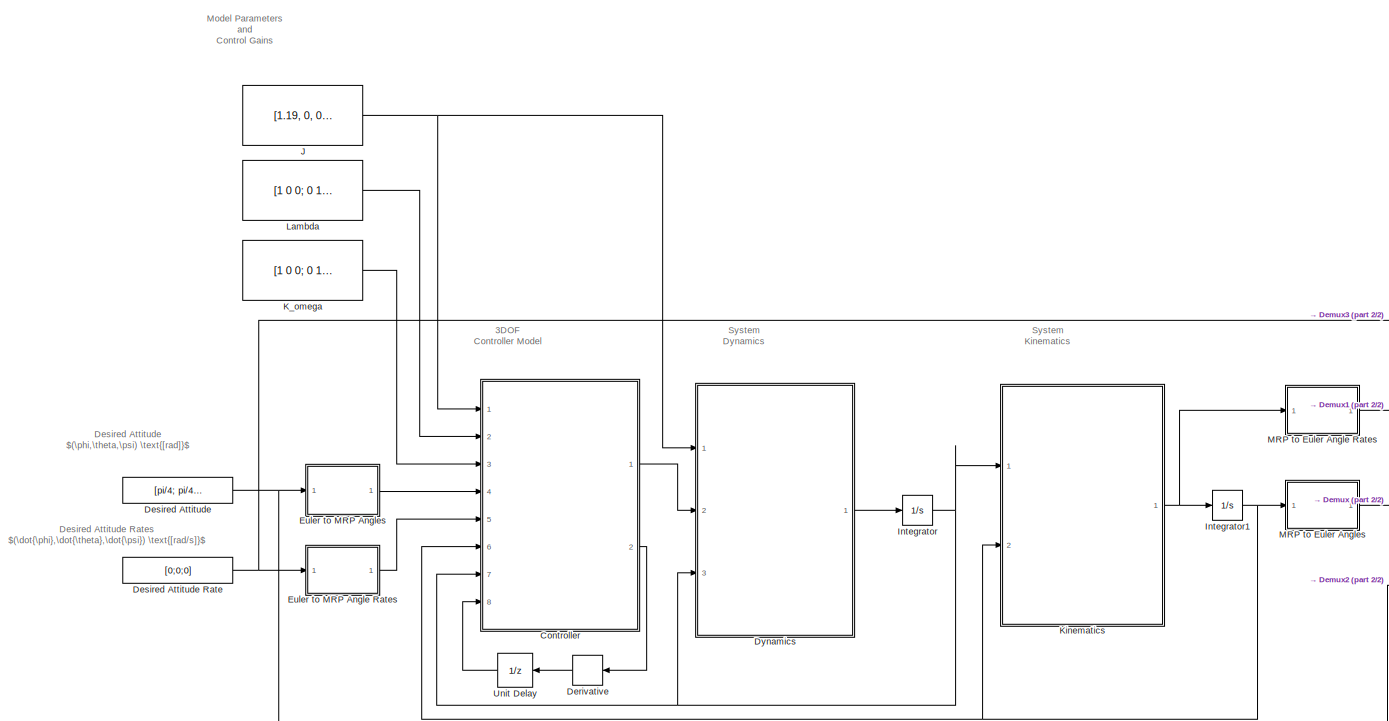
[diagram: root canvas - part 1/2, most of the canvas]
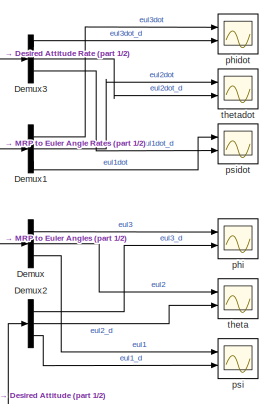
[diagram: root canvas - part 2/2, middle right region]
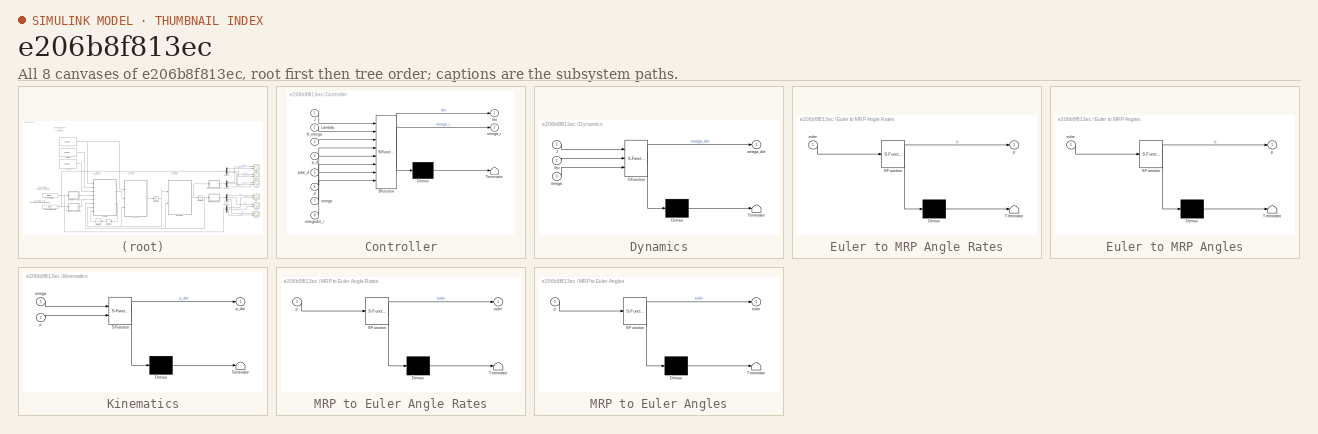
[diagram: thumbnail index - all 8 canvases of the model, root first then tree order]
MODEL slx_e206b8f813ec
KIND model
CONFIG AbsTol = auto
CONFIG EnableMultiTasking = off
CONFIG FixedStep = 1/100
CONFIG MaxStep = auto
CONFIG MinStep = auto
CONFIG RelTol = 1e-3
CONFIG SampleTimeConstraint = Unconstrained
CONFIG Solver = FixedStepAuto
CONFIG SolverName = FixedStepAuto
CONFIG StartTime = 0.0
CONFIG StopTime = 20
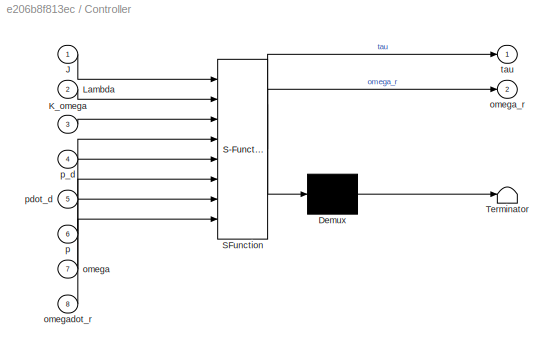
BLOCK [SubSystem] Controller
  ErrorFcn = Stateflow.Translate.translate
  PermitHierarchicalResolution = ExplicitOnly
  Ports = [8, 2]
  RequestExecContextInheritance = off
  SFBlockType = MATLAB Function
  TreatAsAtomicUnit = on
BLOCK [Demux] Controller/ Demux 
  Outputs = 1
  Ports = [1, 1]
BLOCK [S-Function] Controller/ SFunction 
  EnableBusSupport = on
  FunctionName = sf_sfun
  PortCounts = [8 3]
  Ports = [8, 3]
  SFcnIsStateOwnerBlock = off
  SFunctionDeploymentMode = off
  Tag = Stateflow S-Function controller 2
BLOCK [Terminator] Controller/ Terminator 
BLOCK [Inport] Controller/J
  IconDisplay = Port number
BLOCK [Inport] Controller/K_omega
  IconDisplay = Port number
  Port = 3
BLOCK [Inport] Controller/Lambda
  IconDisplay = Port number
  Port = 2
BLOCK [Inport] Controller/omega
  IconDisplay = Port number
  Port = 7
BLOCK [Outport] Controller/omega_r
  IconDisplay = Port number
  Port = 2
BLOCK [Inport] Controller/omegadot_r
  IconDisplay = Port number
  Port = 8
BLOCK [Inport] Controller/p
  IconDisplay = Port number
  Port = 6
BLOCK [Inport] Controller/p_d
  IconDisplay = Port number
  Port = 4
BLOCK [Inport] Controller/pdot_d
  IconDisplay = Port number
  Port = 5
BLOCK [Outport] Controller/tau
  IconDisplay = Port number
BLOCK [Demux] Demux
  DisplayOption = bar
  Outputs = 3
  Ports = [1, 3]
BLOCK [Demux] Demux1
  DisplayOption = bar
  Outputs = 3
  Ports = [1, 3]
BLOCK [Demux] Demux2
  DisplayOption = bar
  Outputs = 3
  Ports = [1, 3]
BLOCK [Demux] Demux3
  DisplayOption = bar
  Outputs = 3
  Ports = [1, 3]
BLOCK [Derivative] Derivative
BLOCK [Constant] Desired Attitude
  Value = [pi/4; pi/4; pi/4]
BLOCK [Constant] Desired Attitude Rate
  Value = [0;0;0]
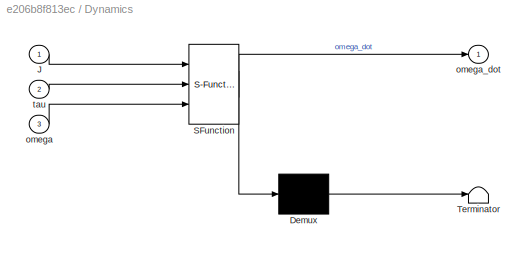
BLOCK [SubSystem] Dynamics
  ErrorFcn = Stateflow.Translate.translate
  PermitHierarchicalResolution = ExplicitOnly
  Ports = [3, 1]
  RequestExecContextInheritance = off
  SFBlockType = MATLAB Function
  TreatAsAtomicUnit = on
BLOCK [Demux] Dynamics/ Demux 
  Outputs = 1
  Ports = [1, 1]
BLOCK [S-Function] Dynamics/ SFunction 
  EnableBusSupport = on
  FunctionName = sf_sfun
  PortCounts = [3 2]
  Ports = [3, 2]
  SFcnIsStateOwnerBlock = off
  SFunctionDeploymentMode = off
  Tag = Stateflow S-Function controller 1
BLOCK [Terminator] Dynamics/ Terminator 
BLOCK [Inport] Dynamics/J
  IconDisplay = Port number
BLOCK [Inport] Dynamics/omega
  IconDisplay = Port number
  Port = 3
BLOCK [Outport] Dynamics/omega_dot
  IconDisplay = Port number
BLOCK [Inport] Dynamics/tau
  IconDisplay = Port number
  Port = 2
BLOCK [SubSystem] Euler to MRP Angle Rates
  ErrorFcn = Stateflow.Translate.translate
  PermitHierarchicalResolution = ExplicitOnly
  Ports = [1, 1]
  RequestExecContextInheritance = off
  SFBlockType = MATLAB Function
  TreatAsAtomicUnit = on
BLOCK [Demux] Euler to MRP Angle Rates/ Demux 
  Outputs = 1
  Ports = [1, 1]
BLOCK [S-Function] Euler to MRP Angle Rates/ SFunction 
  EnableBusSupport = on
  FunctionName = sf_sfun
  PortCounts = [1 2]
  Ports = [1, 2]
  SFcnIsStateOwnerBlock = off
  SFunctionDeploymentMode = off
  Tag = Stateflow S-Function controller 7
BLOCK [Terminator] Euler to MRP Angle Rates/ Terminator 
BLOCK [Inport] Euler to MRP Angle Rates/euler
  IconDisplay = Port number
BLOCK [Outport] Euler to MRP Angle Rates/p
  IconDisplay = Port number
BLOCK [SubSystem] Euler to MRP Angles
  ErrorFcn = Stateflow.Translate.translate
  PermitHierarchicalResolution = ExplicitOnly
  Ports = [1, 1]
  RequestExecContextInheritance = off
  SFBlockType = MATLAB Function
  TreatAsAtomicUnit = on
BLOCK [Demux] Euler to MRP Angles/ Demux 
  Outputs = 1
  Ports = [1, 1]
BLOCK [S-Function] Euler to MRP Angles/ SFunction 
  EnableBusSupport = on
  FunctionName = sf_sfun
  PortCounts = [1 2]
  Ports = [1, 2]
  SFcnIsStateOwnerBlock = off
  SFunctionDeploymentMode = off
  Tag = Stateflow S-Function controller 5
BLOCK [Terminator] Euler to MRP Angles/ Terminator 
BLOCK [Inport] Euler to MRP Angles/euler
  IconDisplay = Port number
BLOCK [Outport] Euler to MRP Angles/p
  IconDisplay = Port number
BLOCK [Integrator] Integrator
  InitialCondition = [0;0;0]
  Ports = [1, 1]
BLOCK [Integrator] Integrator1
  InitialCondition = [0;0;0];
  Ports = [1, 1]
BLOCK [Constant] J
  Value = [1.19, 0, 0; 0, 1.24, 0; 0, 0, 1.43]
BLOCK [Constant] K_omega
  Value = [1 0 0; 0 1 0; 0 0 1]
BLOCK [SubSystem] Kinematics
  ErrorFcn = Stateflow.Translate.translate
  PermitHierarchicalResolution = ExplicitOnly
  Ports = [2, 1]
  RequestExecContextInheritance = off
  SFBlockType = MATLAB Function
  TreatAsAtomicUnit = on
BLOCK [Demux] Kinematics/ Demux 
  Outputs = 1
  Ports = [1, 1]
BLOCK [S-Function] Kinematics/ SFunction 
  EnableBusSupport = on
  FunctionName = sf_sfun
  PortCounts = [2 2]
  Ports = [2, 2]
  SFcnIsStateOwnerBlock = off
  SFunctionDeploymentMode = off
  Tag = Stateflow S-Function controller 3
BLOCK [Terminator] Kinematics/ Terminator 
BLOCK [Inport] Kinematics/omega
  IconDisplay = Port number
BLOCK [Inport] Kinematics/p
  IconDisplay = Port number
  Port = 2
BLOCK [Outport] Kinematics/p_dot
  IconDisplay = Port number
BLOCK [Constant] Lambda
  Value = [1 0 0; 0 1 0; 0 0 1]
BLOCK [SubSystem] MRP to Euler Angle Rates
  ErrorFcn = Stateflow.Translate.translate
  PermitHierarchicalResolution = ExplicitOnly
  Ports = [1, 1]
  RequestExecContextInheritance = off
  SFBlockType = MATLAB Function
  TreatAsAtomicUnit = on
BLOCK [Demux] MRP to Euler Angle Rates/ Demux 
  Outputs = 1
  Ports = [1, 1]
BLOCK [S-Function] MRP to Euler Angle Rates/ SFunction 
  EnableBusSupport = on
  FunctionName = sf_sfun
  PortCounts = [1 2]
  Ports = [1, 2]
  SFcnIsStateOwnerBlock = off
  SFunctionDeploymentMode = off
  Tag = Stateflow S-Function controller 6
BLOCK [Terminator] MRP to Euler Angle Rates/ Terminator 
BLOCK [Outport] MRP to Euler Angle Rates/euler
  IconDisplay = Port number
BLOCK [Inport] MRP to Euler Angle Rates/p
  IconDisplay = Port number
BLOCK [SubSystem] MRP to Euler Angles
  ErrorFcn = Stateflow.Translate.translate
  PermitHierarchicalResolution = ExplicitOnly
  Ports = [1, 1]
  RequestExecContextInheritance = off
  SFBlockType = MATLAB Function
  TreatAsAtomicUnit = on
BLOCK [Demux] MRP to Euler Angles/ Demux 
  Outputs = 1
  Ports = [1, 1]
BLOCK [S-Function] MRP to Euler Angles/ SFunction 
  EnableBusSupport = on
  FunctionName = sf_sfun
  PortCounts = [1 2]
  Ports = [1, 2]
  SFcnIsStateOwnerBlock = off
  SFunctionDeploymentMode = off
  Tag = Stateflow S-Function controller 4
BLOCK [Terminator] MRP to Euler Angles/ Terminator 
BLOCK [Outport] MRP to Euler Angles/euler
  IconDisplay = Port number
BLOCK [Inport] MRP to Euler Angles/p
  IconDisplay = Port number
BLOCK [UnitDelay] Unit Delay
  InitialCondition = [0;0;0]
  InputProcessing = Elements as channels (sample based)
  SampleTime = -1
BLOCK [Scope] phi
  Floating = off
  NumInputPorts = 2
  Ports = [2]
  ScopeSpecificationString = Simulink.scopes.TimeScopeBlockCfg('CurrentConfiguration', extmgr.ConfigurationSet(extmgr.Configuration('Core','General UI',true),extmgr.Configuration('Core','Source UI',true),extmgr.Configuration('Sources','WiredSimulink',true),extmgr.Configuration('Visuals','Time Domain',true,'SerializedDisplays',{struct('MinYLimReal','-0.09817','MaxYLimReal','0.88357','YLabelReal','','MinYLimMag','0.00000','MaxY...<+1449ch>
BLOCK [Scope] phidot
  Floating = off
  NumInputPorts = 2
  Ports = [2]
  ScopeSpecificationString = Simulink.scopes.TimeScopeBlockCfg('CurrentConfiguration', extmgr.ConfigurationSet(extmgr.Configuration('Core','General UI',true),extmgr.Configuration('Core','Source UI',true),extmgr.Configuration('Sources','WiredSimulink',true,'DataLoggingVariableName','ScopeData3'),extmgr.Configuration('Visuals','Time Domain',true,'SerializedDisplays',{struct('MinYLimReal','-0.01915','MaxYLimReal','0.17236','YLab...<+1460ch>
BLOCK [Scope] psi
  Floating = off
  NumInputPorts = 2
  Ports = [2]
  ScopeSpecificationString = Simulink.scopes.TimeScopeBlockCfg('CurrentConfiguration', extmgr.ConfigurationSet(extmgr.Configuration('Core','General UI',true),extmgr.Configuration('Core','Source UI',true),extmgr.Configuration('Sources','WiredSimulink',true,'DataLoggingVariableName','ScopeData2'),extmgr.Configuration('Visuals','Time Domain',true,'SerializedDisplays',{struct('MinYLimReal','-0.09817','MaxYLimReal','0.88357','YLab...<+1488ch>
BLOCK [Scope] psidot
  Floating = off
  NumInputPorts = 2
  Ports = [2]
  ScopeSpecificationString = Simulink.scopes.TimeScopeBlockCfg('CurrentConfiguration', extmgr.ConfigurationSet(extmgr.Configuration('Core','General UI',true),extmgr.Configuration('Core','Source UI',true),extmgr.Configuration('Sources','WiredSimulink',true,'DataLoggingVariableName','ScopeData5'),extmgr.Configuration('Visuals','Time Domain',true,'SerializedDisplays',{struct('MinYLimReal','-0.02007','MaxYLimReal','0.18061','YLab...<+1459ch>
BLOCK [Scope] theta
  Floating = off
  NumInputPorts = 2
  Ports = [2]
  ScopeSpecificationString = Simulink.scopes.TimeScopeBlockCfg('CurrentConfiguration', extmgr.ConfigurationSet(extmgr.Configuration('Core','General UI',true),extmgr.Configuration('Core','Source UI',true),extmgr.Configuration('Sources','WiredSimulink',true,'DataLoggingVariableName','ScopeData1'),extmgr.Configuration('Visuals','Time Domain',true,'SerializedDisplays',{struct('MinYLimReal','-0.09818','MaxYLimReal','0.88358','YLab...<+1466ch>
BLOCK [Scope] thetadot
  Floating = off
  NumInputPorts = 2
  Ports = [2]
  ScopeSpecificationString = Simulink.scopes.TimeScopeBlockCfg('CurrentConfiguration', extmgr.ConfigurationSet(extmgr.Configuration('Core','General UI',true),extmgr.Configuration('Core','Source UI',true),extmgr.Configuration('Sources','WiredSimulink',true,'DataLoggingVariableName','ScopeData4'),extmgr.Configuration('Visuals','Time Domain',true,'SerializedDisplays',{struct('MinYLimReal','-0.03988','MaxYLimReal','0.35891','YLab...<+1464ch>
ANNOTATION (root): 3DOF Controller Model
ANNOTATION (root): Model Parameters and Control Gains
ANNOTATION (root): System Dynamics
ANNOTATION (root): System Kinematics
ANNOTATION (root): Desired Attitude Rates $(\dot{\phi},\dot{\theta},\dot{\psi}) \text{[rad/s]}$
ANNOTATION (root): Desired Attitude $(\phi,\theta,\psi) \text{[rad]}$
LINE Controller:1 -> Dynamics:2
LINE Controller:2 -> Derivative:1
LINE Demux1:1 -> phidot:1
LINE Demux1:2 -> thetadot:1
LINE Demux1:3 -> psidot:1
LINE Demux2:1 -> phi:2
LINE Demux2:2 -> theta:2
LINE Demux2:3 -> psi:2
LINE Demux3:1 -> phidot:2
LINE Demux3:2 -> thetadot:2
LINE Demux3:3 -> psidot:2
LINE Demux:1 -> phi:1
LINE Demux:2 -> theta:1
LINE Demux:3 -> psi:1
LINE Derivative:1 -> Unit Delay:1
NET Desired Attitude Rate:1 -> Demux3:1, Euler to MRP Angle Rates:1
NET Desired Attitude:1 -> Demux2:1, Euler to MRP Angles:1
LINE Dynamics:1 -> Integrator:1
LINE Euler to MRP Angle Rates:1 -> Controller:5
LINE Euler to MRP Angles:1 -> Controller:4
NET Integrator1:1 -> Controller:6, Kinematics:2, MRP to Euler Angles:1
NET Integrator:1 -> Controller:7, Dynamics:3, Kinematics:1
NET J:1 -> Controller:1, Dynamics:1
LINE K_omega:1 -> Controller:3
NET Kinematics:1 -> Integrator1:1, MRP to Euler Angle Rates:1
LINE Lambda:1 -> Controller:2
LINE MRP to Euler Angle Rates:1 -> Demux1:1
LINE MRP to Euler Angles:1 -> Demux:1
LINE Unit Delay:1 -> Controller:8
note: NET lines group one-source signal fan-out (src -> all destinations, sorted); 1:1 wires keep LINE
CHART Dynamics states=1 transitions=1
  STATE_LABEL 'eML_blk_kernel()'
  STATE_LABEL 'SCRIPT:\nfunction omega_dot = dynamics(J, tau, omega)\n\nS = @(p) [0, -p(3), p(2); p(3) 0 -p(1); -p(2) p(1) 0];\n\n% Model Parameters\n% J = eye(3); % Inertia matrix\nM_b = J; % Eqn (6), should just be J\nC_b = -S(J*omega); % Eqn (6), should just be -S(J*omega)\nH_b = zeros(3,1); % Eqn 8\n\nomega_dot = inv(M_b) * (tau - C_b*omega - H_b); % Eqn (5)'
CHART Controller states=1 transitions=1
  STATE_LABEL 'eML_blk_kernel()'
  STATE_LABEL "SCRIPT:\nfunction [tau, omega_r] = controller(J, Lambda, K_omega, p_d, pdot_d, p, omega, omegadot_r)\n\n% Controller Gains\n% Lambda = eye(3); % Controller Gain\n% K_omega = eye(3); % Controller Gain\n\n% Eqn (2)\nI_3 = eye(3);\nS = @(p) [0, -p(3), p(2); p(3) 0 -p(1); -p(2) p(1) 0];\nZ = @(p) 1/2 * ( I_3*(1-p'*p)/2 + p*p' + S(p) );\n\n% Model Parameters\n% J = eye(3); % Inertia matrix\nM_b = J; % Eqn (6), shoul...<+368ch>"
CHART Kinematics states=1 transitions=1
  STATE_LABEL 'eML_blk_kernel()'
  STATE_LABEL "SCRIPT:\nfunction p_dot = kinematics(omega, p)\n\n% Eqn (2)\nI_3 = eye(3);\nS = @(p) [0, -p(3), p(2); p(3) 0 -p(1); -p(2) p(1) 0];\nZ = @(p) 1/2 * ( I_3*(1-p'*p)/2 + p*p' + S(p) );\n\np_dot = Z(p) * omega; % Eqn (2)"
CHART MRP to Euler
Angles states=1 transitions=1
  STATE_LABEL 'eML_blk_kernel()'
  STATE_LABEL "SCRIPT:\nfunction euler = mrp2euler(p)\n\neuler = ConvertAttitude(p, 'mrp', '321');"
CHART Euler to MRP
Angles states=1 transitions=1
  STATE_LABEL 'eML_blk_kernel()'
  STATE_LABEL "SCRIPT:\nfunction p  = euler2mrp(euler)\n\np = ConvertAttitude(euler, '321', 'mrp');"
CHART MRP to Euler
Angle Rates states=1 transitions=1
  STATE_LABEL 'eML_blk_kernel()'
  STATE_LABEL "SCRIPT:\nfunction euler = mrp2euler(p)\n\neuler = ConvertAttitude(p, 'mrp', '321');"
CHART Euler to MRP
Angle Rates states=1 transitions=1
  STATE_LABEL 'eML_blk_kernel()'
  STATE_LABEL "SCRIPT:\nfunction p = euler2mrp(euler)\n\np = ConvertAttitude(euler, '321', 'mrp');"
